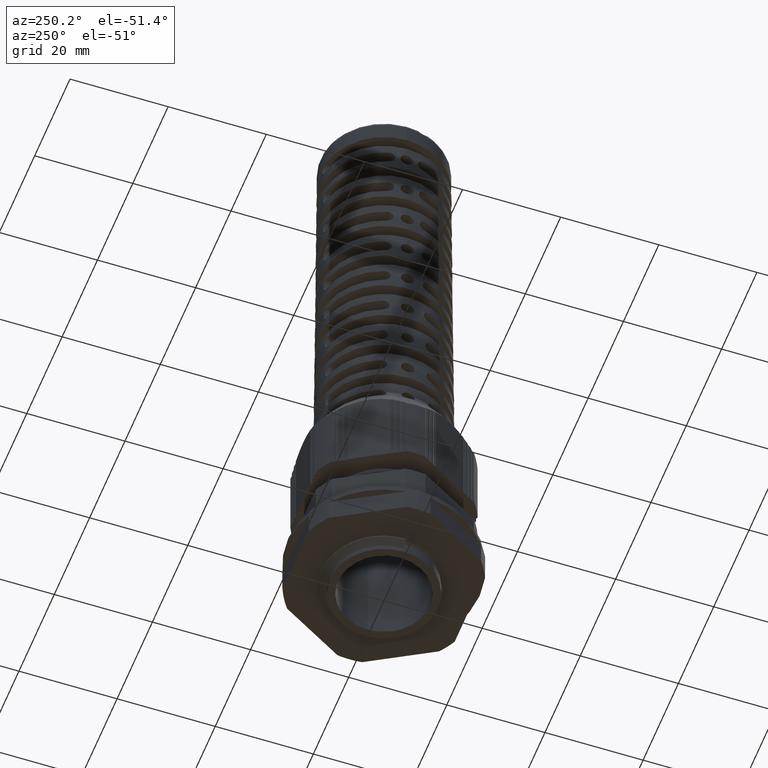
[diagram: clean part render]
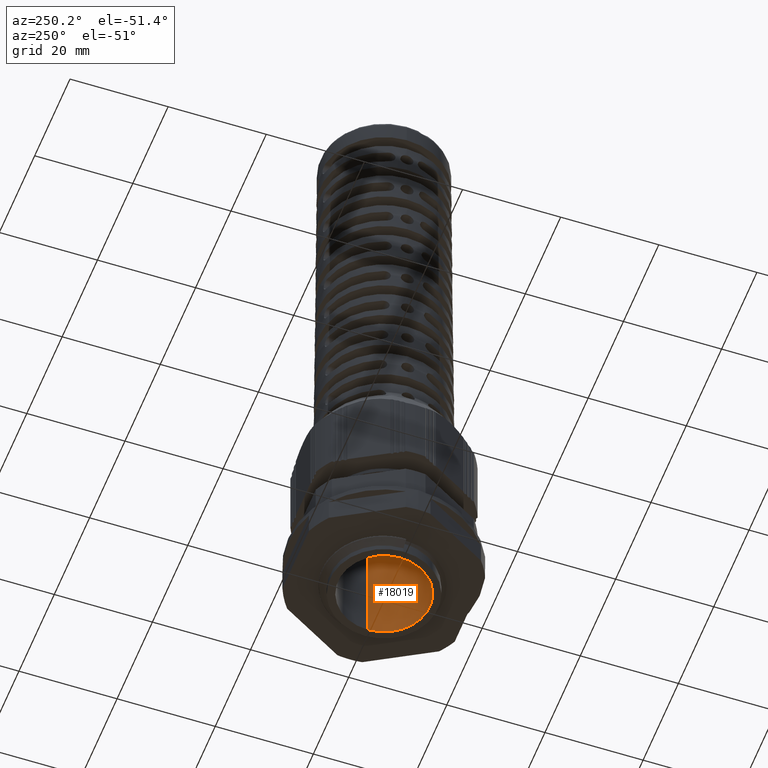
[diagram: same view with one face highlighted and labeled with its STEP entity id]
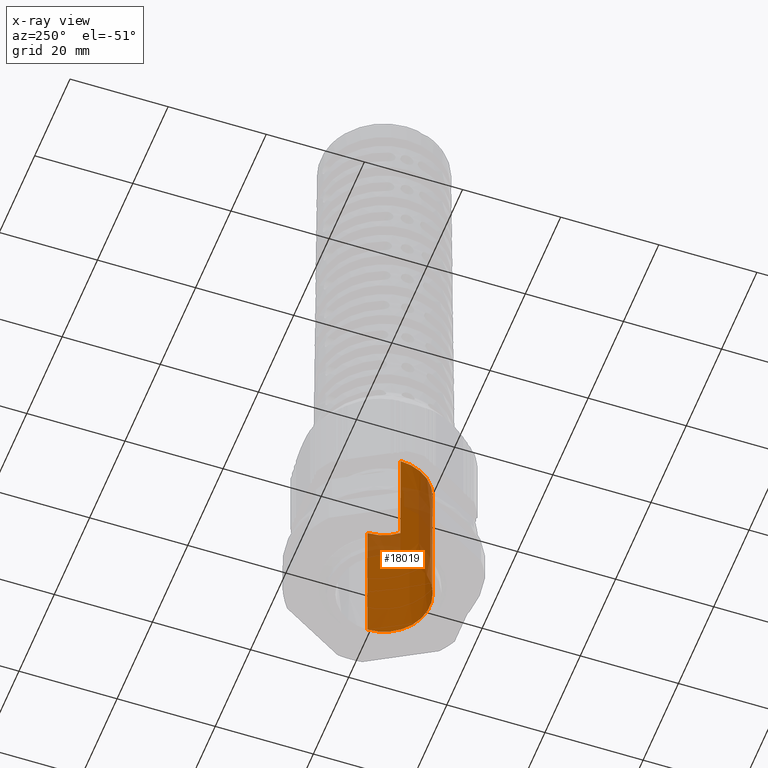
[diagram: x-ray of the same camera — body ghosted, the highlighted face saturated]
A machine part, auxiliary view. The second image highlights one B-rep face of the part: STEP entity #18019.
The next image is the same camera in x-ray: the body ghosted, the highlighted face saturated — about 21% of this face is hidden behind the body in this view.
In plain terms, the highlighted conical surface has half-angle 0.079 deg.
Its self-contained STEP definition (entity closure, byte-faithful):
#3765 = EDGE_LOOP ( 'NONE', ( #7279, #7332, #7321, #7265 ) ) ;
#6495 = LINE ( 'NONE', #6498, #26492 ) ;
#6498 = CARTESIAN_POINT ( 'NONE',  ( -9.390909090909096000, 1.150054675926560500E-015, 29.70000000000001700 ) ) ;
#6499 = DIRECTION ( 'NONE',  ( -0.001377409161669001300, 1.686839720954181400E-019, 0.9999990513715506500 ) ) ;
#7134 = VERTEX_POINT ( 'NONE', #14169 ) ;
#7157 = VERTEX_POINT ( 'NONE', #14198 ) ;
#7160 = VERTEX_POINT ( 'NONE', #14199 ) ;
#7199 = VERTEX_POINT ( 'NONE', #14267 ) ;
#7265 = ORIENTED_EDGE ( 'NONE', *, *, #9913, .F. ) ;
#7279 = ORIENTED_EDGE ( 'NONE', *, *, #10001, .F. ) ;
#7321 = ORIENTED_EDGE ( 'NONE', *, *, #9956, .T. ) ;
#7332 = ORIENTED_EDGE ( 'NONE', *, *, #9933, .T. ) ;
#9913 = EDGE_CURVE ( 'NONE', #7160, #7157, #11656, .T. ) ;
#9933 = EDGE_CURVE ( 'NONE', #7199, #7134, #6495, .T. ) ;
#9956 = EDGE_CURVE ( 'NONE', #7134, #7157, #26530, .T. ) ;
#10001 = EDGE_CURVE ( 'NONE', #7199, #7160, #26590, .T. ) ;
#11656 = LINE ( 'NONE', #11659, #26467 ) ;
#11659 = CARTESIAN_POINT ( 'NONE',  ( 9.390909090909096000, 0.0000000000000000000, 29.70000000000001700 ) ) ;
#11672 = DIRECTION ( 'NONE',  ( 0.001377409161669001300, 0.0000000000000000000, 0.9999990513715506500 ) ) ;
#12878 = DIRECTION ( 'NONE',  ( 0.0000000000000000000, -0.0000000000000000000, 1.000000000000000000 ) ) ;
#12879 = DIRECTION ( 'NONE',  ( 1.000000000000000000, 0.0000000000000000000, 0.0000000000000000000 ) ) ;
#12883 = CARTESIAN_POINT ( 'NONE',  ( 0.0000000000000000000, 0.0000000000000000000, 0.0000000000000000000 ) ) ;
#12893 = DIRECTION ( 'NONE',  ( 0.0000000000000000000, 0.0000000000000000000, 1.000000000000000000 ) ) ;
#12894 = DIRECTION ( 'NONE',  ( -1.000000000000000000, 0.0000000000000000000, 0.0000000000000000000 ) ) ;
#12904 = CARTESIAN_POINT ( 'NONE',  ( 0.0000000000000000000, 0.0000000000000000000, 29.69999999999999600 ) ) ;
#14169 = CARTESIAN_POINT ( 'NONE',  ( -9.390909090909096000, 1.150054675926560500E-015, 29.69999999999999600 ) ) ;
#14198 = CARTESIAN_POINT ( 'NONE',  ( 9.390909090909096000, 0.0000000000000000000, 29.69999999999999600 ) ) ;
#14199 = CARTESIAN_POINT ( 'NONE',  ( 9.349999999999999600, 0.0000000000000000000, 0.0000000000000000000 ) ) ;
#14267 = CARTESIAN_POINT ( 'NONE',  ( -9.349999999999999600, 1.147549716564667700E-015, 0.0000000000000000000 ) ) ;
#15522 = AXIS2_PLACEMENT_3D ( 'NONE', #25124, #25099, #25139 ) ;
#15523 = CONICAL_SURFACE ( 'NONE', #15522, 9.390909090909096000, 0.001377409597219005600 ) ;
#18019 = ADVANCED_FACE ( 'NONE', ( #25115 ), #15523, .F. ) ;
#25099 = DIRECTION ( 'NONE',  ( 0.0000000000000000000, -0.0000000000000000000, 1.000000000000000000 ) ) ;
#25115 = FACE_OUTER_BOUND ( 'NONE', #3765, .T. ) ;
#25124 = CARTESIAN_POINT ( 'NONE',  ( 0.0000000000000000000, 0.0000000000000000000, 29.70000000000001700 ) ) ;
#25139 = DIRECTION ( 'NONE',  ( 1.000000000000000000, 0.0000000000000000000, 0.0000000000000000000 ) ) ;
#26467 = VECTOR ( 'NONE', #11672, 1000.000000000000100 ) ;
#26492 = VECTOR ( 'NONE', #6499, 1000.000000000000100 ) ;
#26530 = CIRCLE ( 'NONE', #26532, 9.390909090909096000 ) ;
#26532 = AXIS2_PLACEMENT_3D ( 'NONE', #12904, #12893, #12894 ) ;
#26559 = AXIS2_PLACEMENT_3D ( 'NONE', #12883, #12878, #12879 ) ;
#26590 = CIRCLE ( 'NONE', #26559, 9.349999999999999600 ) ;